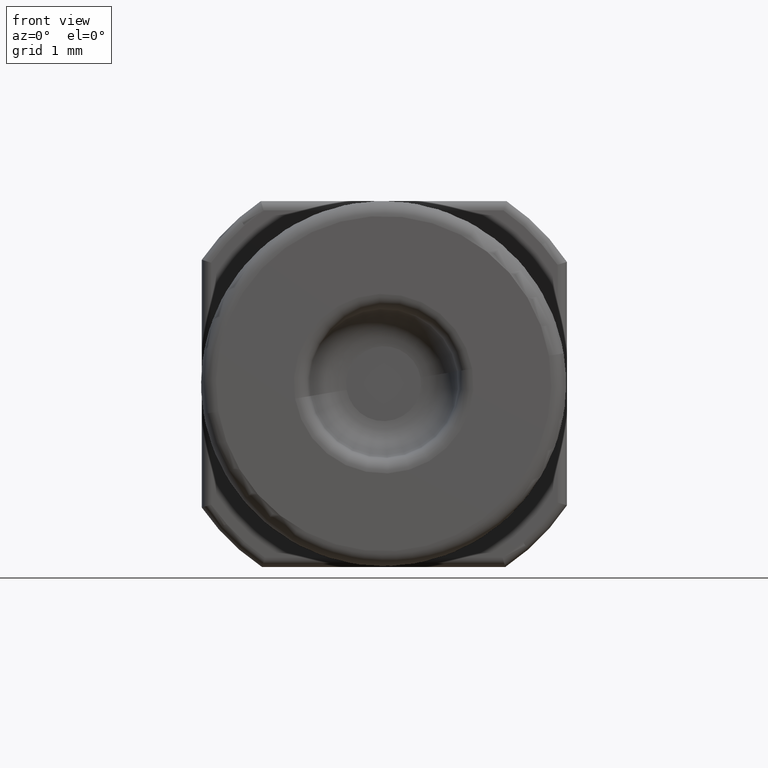
[diagram: clean part render]
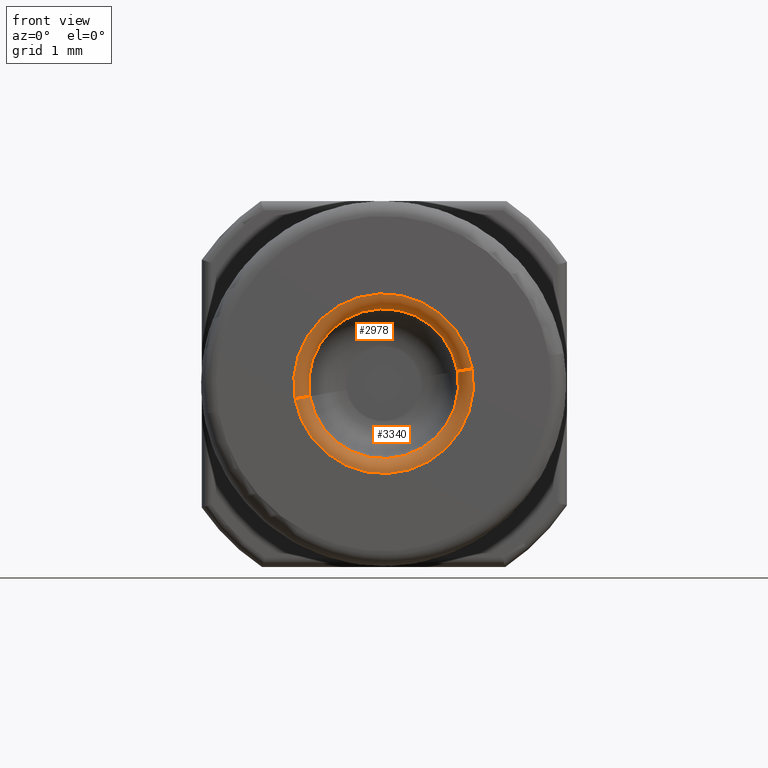
[diagram: same view with one multi-face feature highlighted, each face labeled with its STEP entity id]
A machine part, front view. The highlighted faces form ONE feature: a constant-radius fillet chain: 2 tangent blend faces with common blend radius 0.2032 mm. The faces share edges in the B-rep.
Their STEP definitions:
[1] entity #3340 (Torus):
#18 = DIRECTION ( 'NONE',  ( 0.0000000000000000000, 0.0000000000000000000, 1.000000000000000000 ) ) ;
#76 = EDGE_CURVE ( 'NONE', #4050, #864, #4218, .T. ) ;
#89 = AXIS2_PLACEMENT_3D ( 'NONE', #6528, #3605, #4701 ) ;
#342 = EDGE_CURVE ( 'NONE', #864, #855, #1286, .T. ) ;
#410 = CARTESIAN_POINT ( 'NONE',  ( 0.0000000000000000000, 0.07699999999999998512, 0.04799999999999998712 ) ) ;
#422 = CARTESIAN_POINT ( 'NONE',  ( 0.0000000000000000000, 0.06899999999999999190, 0.03999999999999999389 ) ) ;
#637 = EDGE_LOOP ( 'NONE', ( #4184, #4673, #928, #3292 ) ) ;
#843 = CARTESIAN_POINT ( 'NONE',  ( 4.898587196589411226E-18, 0.06899999999999999190, -0.03999999999999999389 ) ) ;
#844 = TOROIDAL_SURFACE ( 'NONE', #4028, 0.04799999999999998712, 0.007999999999999998432 ) ;
#855 = VERTEX_POINT ( 'NONE', #843 ) ;
#864 = VERTEX_POINT ( 'NONE', #422 ) ;
#928 = ORIENTED_EDGE ( 'NONE', *, *, #342, .F. ) ;
#966 = CIRCLE ( 'NONE', #3199, 0.007999999999999998432 ) ;
#1286 = CIRCLE ( 'NONE', #2231, 0.03999999999999999389 ) ;
#1666 = CARTESIAN_POINT ( 'NONE',  ( 0.0000000000000000000, 0.06899999999999999190, 0.0000000000000000000 ) ) ;
#1725 = DIRECTION ( 'NONE',  ( -1.000000000000000000, 0.0000000000000000000, 0.0000000000000000000 ) ) ;
#2045 = VERTEX_POINT ( 'NONE', #4976 ) ;
#2118 = CARTESIAN_POINT ( 'NONE',  ( 5.878304635907293934E-18, 0.06899999999999999190, -0.04799999999999998712 ) ) ;
#2186 = FACE_OUTER_BOUND ( 'NONE', #637, .T. ) ;
#2207 = DIRECTION ( 'NONE',  ( 0.0000000000000000000, 0.0000000000000000000, 1.000000000000000000 ) ) ;
#2231 = AXIS2_PLACEMENT_3D ( 'NONE', #2245, #6703, #2319 ) ;
#2245 = CARTESIAN_POINT ( 'NONE',  ( 0.0000000000000000000, 0.06899999999999999190, 0.0000000000000000000 ) ) ;
#2319 = DIRECTION ( 'NONE',  ( 0.0000000000000000000, 0.0000000000000000000, 1.000000000000000000 ) ) ;
#3199 = AXIS2_PLACEMENT_3D ( 'NONE', #2118, #7171, #5007 ) ;
#3252 = CIRCLE ( 'NONE', #89, 0.04799999999999998712 ) ;
#3292 = ORIENTED_EDGE ( 'NONE', *, *, #76, .F. ) ;
#3340 = ADVANCED_FACE ( 'NONE', ( #2186 ), #844, .T. ) ;
#3605 = DIRECTION ( 'NONE',  ( -0.0000000000000000000, 1.000000000000000000, -0.0000000000000000000 ) ) ;
#3873 = AXIS2_PLACEMENT_3D ( 'NONE', #4521, #1725, #2207 ) ;
#4028 = AXIS2_PLACEMENT_3D ( 'NONE', #1666, #5567, #18 ) ;
#4030 = EDGE_CURVE ( 'NONE', #2045, #855, #966, .T. ) ;
#4050 = VERTEX_POINT ( 'NONE', #410 ) ;
#4184 = ORIENTED_EDGE ( 'NONE', *, *, #6220, .T. ) ;
#4218 = CIRCLE ( 'NONE', #3873, 0.007999999999999998432 ) ;
#4521 = CARTESIAN_POINT ( 'NONE',  ( 0.0000000000000000000, 0.06899999999999999190, 0.04799999999999998712 ) ) ;
#4673 = ORIENTED_EDGE ( 'NONE', *, *, #4030, .T. ) ;
#4701 = DIRECTION ( 'NONE',  ( 0.0000000000000000000, 0.0000000000000000000, 1.000000000000000000 ) ) ;
#4976 = CARTESIAN_POINT ( 'NONE',  ( 5.878304635907293934E-18, 0.07699999999999998512, -0.04799999999999998712 ) ) ;
#5007 = DIRECTION ( 'NONE',  ( 1.224646799147353700E-16, 0.0000000000000000000, -1.000000000000000000 ) ) ;
#5567 = DIRECTION ( 'NONE',  ( -0.0000000000000000000, 1.000000000000000000, -0.0000000000000000000 ) ) ;
#6220 = EDGE_CURVE ( 'NONE', #4050, #2045, #3252, .T. ) ;
#6528 = CARTESIAN_POINT ( 'NONE',  ( 0.0000000000000000000, 0.07699999999999998512, 0.0000000000000000000 ) ) ;
#6703 = DIRECTION ( 'NONE',  ( -0.0000000000000000000, 1.000000000000000000, -0.0000000000000000000 ) ) ;
#7171 = DIRECTION ( 'NONE',  ( 1.000000000000000000, 0.0000000000000000000, 1.224646799147353207E-16 ) ) ;
[2] entity #2978 (Torus):
#76 = EDGE_CURVE ( 'NONE', #4050, #864, #4218, .T. ) ;
#227 = CARTESIAN_POINT ( 'NONE',  ( 0.0000000000000000000, 0.06899999999999999190, 0.0000000000000000000 ) ) ;
#410 = CARTESIAN_POINT ( 'NONE',  ( 0.0000000000000000000, 0.07699999999999998512, 0.04799999999999998712 ) ) ;
#422 = CARTESIAN_POINT ( 'NONE',  ( 0.0000000000000000000, 0.06899999999999999190, 0.03999999999999999389 ) ) ;
#838 = DIRECTION ( 'NONE',  ( 0.0000000000000000000, 0.0000000000000000000, 1.000000000000000000 ) ) ;
#843 = CARTESIAN_POINT ( 'NONE',  ( 4.898587196589411226E-18, 0.06899999999999999190, -0.03999999999999999389 ) ) ;
#855 = VERTEX_POINT ( 'NONE', #843 ) ;
#864 = VERTEX_POINT ( 'NONE', #422 ) ;
#966 = CIRCLE ( 'NONE', #3199, 0.007999999999999998432 ) ;
#981 = EDGE_LOOP ( 'NONE', ( #1288, #1829, #4489, #3782 ) ) ;
#1227 = DIRECTION ( 'NONE',  ( -0.0000000000000000000, 1.000000000000000000, -0.0000000000000000000 ) ) ;
#1288 = ORIENTED_EDGE ( 'NONE', *, *, #4030, .F. ) ;
#1367 = AXIS2_PLACEMENT_3D ( 'NONE', #7078, #2052, #838 ) ;
#1725 = DIRECTION ( 'NONE',  ( -1.000000000000000000, 0.0000000000000000000, 0.0000000000000000000 ) ) ;
#1829 = ORIENTED_EDGE ( 'NONE', *, *, #2724, .T. ) ;
#1842 = AXIS2_PLACEMENT_3D ( 'NONE', #1896, #3514, #2382 ) ;
#1896 = CARTESIAN_POINT ( 'NONE',  ( 0.0000000000000000000, 0.06899999999999999190, 0.0000000000000000000 ) ) ;
#2045 = VERTEX_POINT ( 'NONE', #4976 ) ;
#2052 = DIRECTION ( 'NONE',  ( -0.0000000000000000000, 1.000000000000000000, -0.0000000000000000000 ) ) ;
#2095 = CIRCLE ( 'NONE', #5948, 0.03999999999999999389 ) ;
#2118 = CARTESIAN_POINT ( 'NONE',  ( 5.878304635907293934E-18, 0.06899999999999999190, -0.04799999999999998712 ) ) ;
#2207 = DIRECTION ( 'NONE',  ( 0.0000000000000000000, 0.0000000000000000000, 1.000000000000000000 ) ) ;
#2214 = EDGE_CURVE ( 'NONE', #855, #864, #2095, .T. ) ;
#2382 = DIRECTION ( 'NONE',  ( 0.0000000000000000000, 0.0000000000000000000, 1.000000000000000000 ) ) ;
#2724 = EDGE_CURVE ( 'NONE', #2045, #4050, #4880, .T. ) ;
#2978 = ADVANCED_FACE ( 'NONE', ( #6293 ), #6289, .T. ) ;
#3199 = AXIS2_PLACEMENT_3D ( 'NONE', #2118, #7171, #5007 ) ;
#3461 = DIRECTION ( 'NONE',  ( 0.0000000000000000000, 0.0000000000000000000, 1.000000000000000000 ) ) ;
#3514 = DIRECTION ( 'NONE',  ( -0.0000000000000000000, 1.000000000000000000, -0.0000000000000000000 ) ) ;
#3782 = ORIENTED_EDGE ( 'NONE', *, *, #2214, .F. ) ;
#3873 = AXIS2_PLACEMENT_3D ( 'NONE', #4521, #1725, #2207 ) ;
#4030 = EDGE_CURVE ( 'NONE', #2045, #855, #966, .T. ) ;
#4050 = VERTEX_POINT ( 'NONE', #410 ) ;
#4218 = CIRCLE ( 'NONE', #3873, 0.007999999999999998432 ) ;
#4489 = ORIENTED_EDGE ( 'NONE', *, *, #76, .T. ) ;
#4521 = CARTESIAN_POINT ( 'NONE',  ( 0.0000000000000000000, 0.06899999999999999190, 0.04799999999999998712 ) ) ;
#4880 = CIRCLE ( 'NONE', #1367, 0.04799999999999998712 ) ;
#4976 = CARTESIAN_POINT ( 'NONE',  ( 5.878304635907293934E-18, 0.07699999999999998512, -0.04799999999999998712 ) ) ;
#5007 = DIRECTION ( 'NONE',  ( 1.224646799147353700E-16, 0.0000000000000000000, -1.000000000000000000 ) ) ;
#5948 = AXIS2_PLACEMENT_3D ( 'NONE', #227, #1227, #3461 ) ;
#6289 = TOROIDAL_SURFACE ( 'NONE', #1842, 0.04799999999999998712, 0.007999999999999998432 ) ;
#6293 = FACE_OUTER_BOUND ( 'NONE', #981, .T. ) ;
#7078 = CARTESIAN_POINT ( 'NONE',  ( 0.0000000000000000000, 0.07699999999999998512, 0.0000000000000000000 ) ) ;
#7171 = DIRECTION ( 'NONE',  ( 1.000000000000000000, 0.0000000000000000000, 1.224646799147353207E-16 ) ) ;